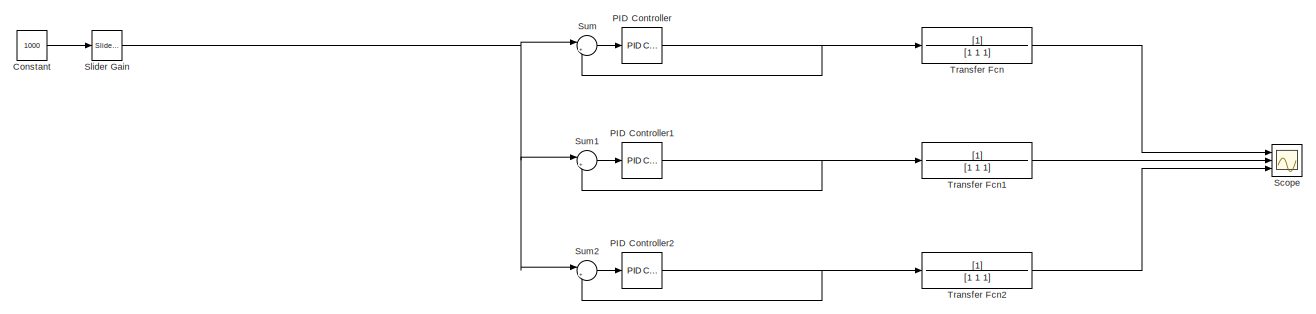
[diagram: root canvas - part 1/7, top left region]
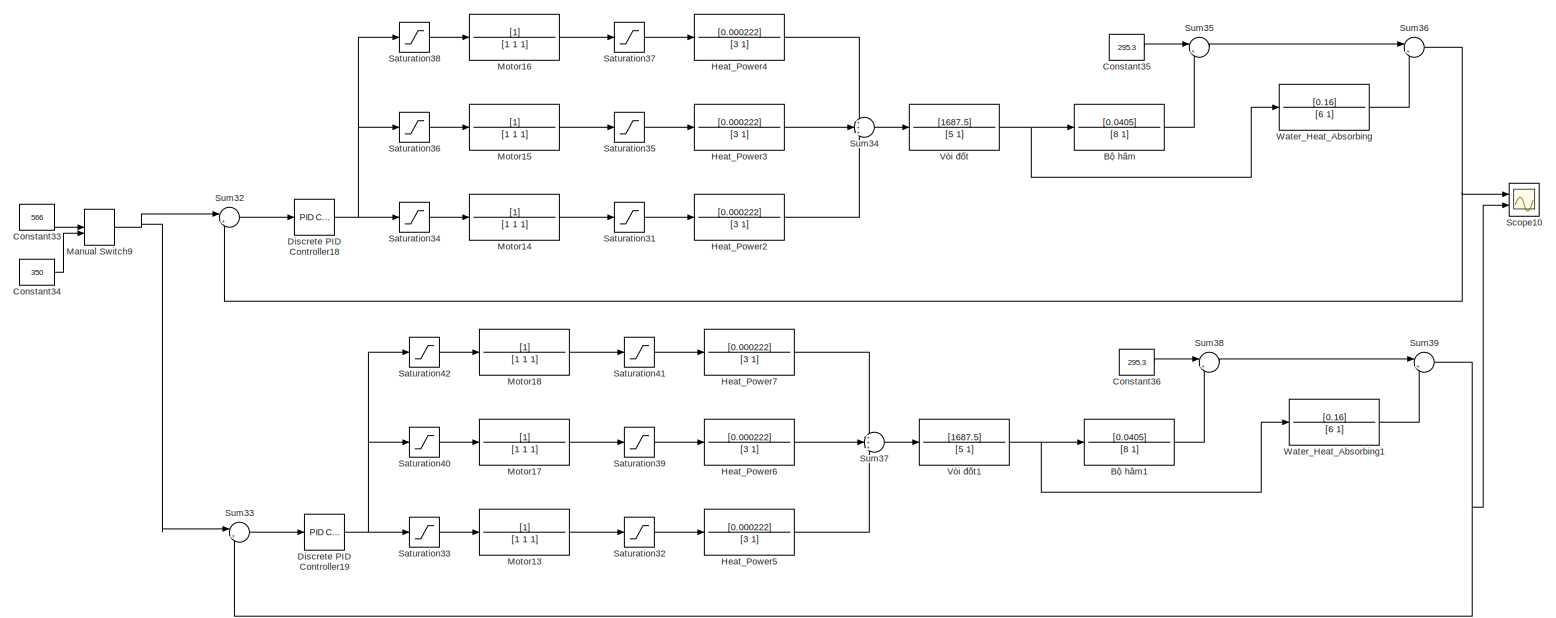
[diagram: root canvas - part 2/7, middle right region]
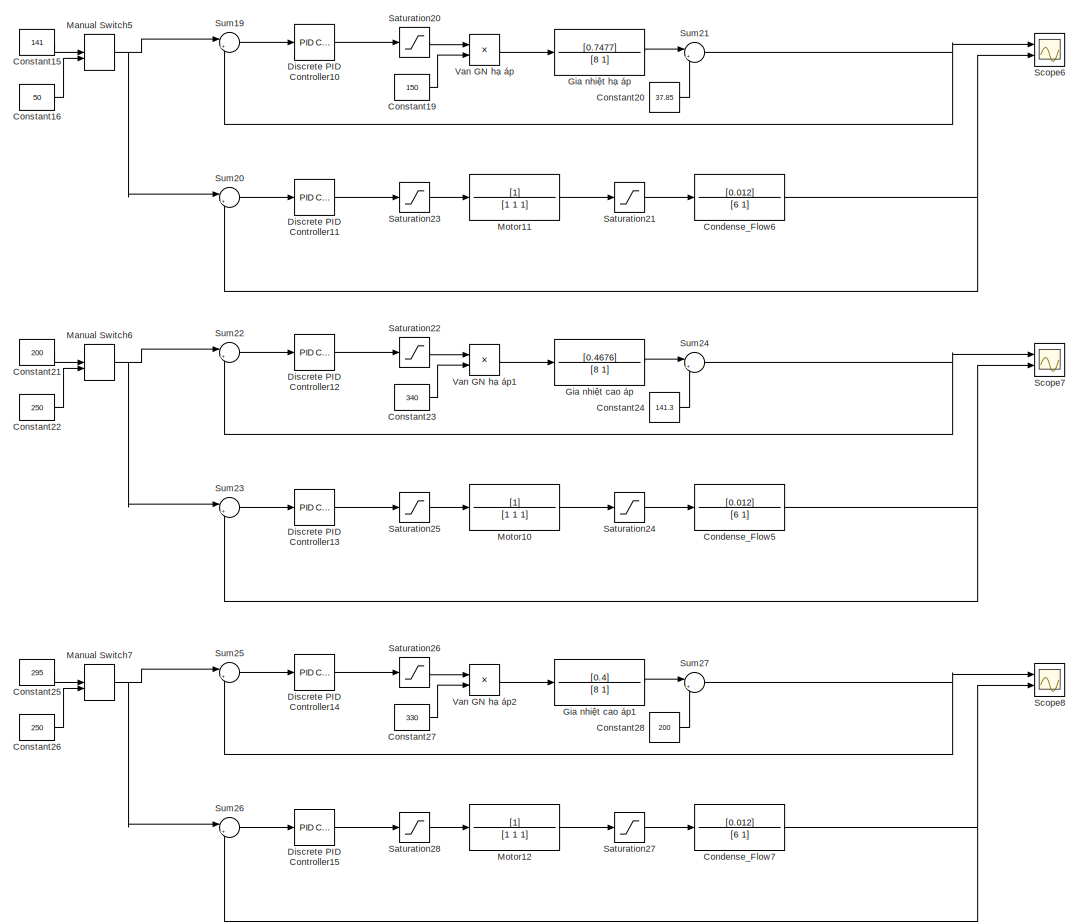
[diagram: root canvas - part 3/7, central region]
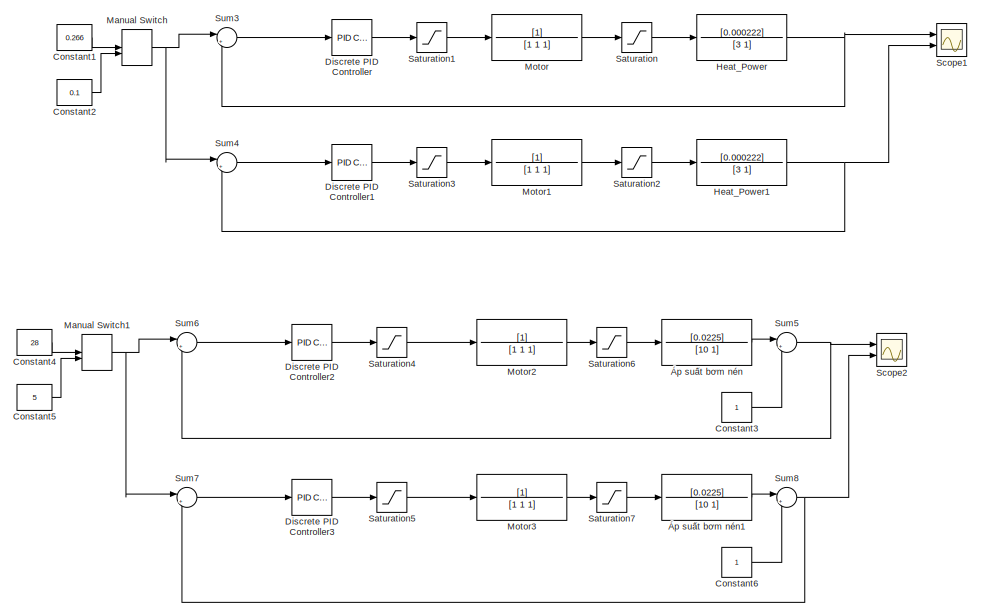
[diagram: root canvas - part 4/7, middle left region]
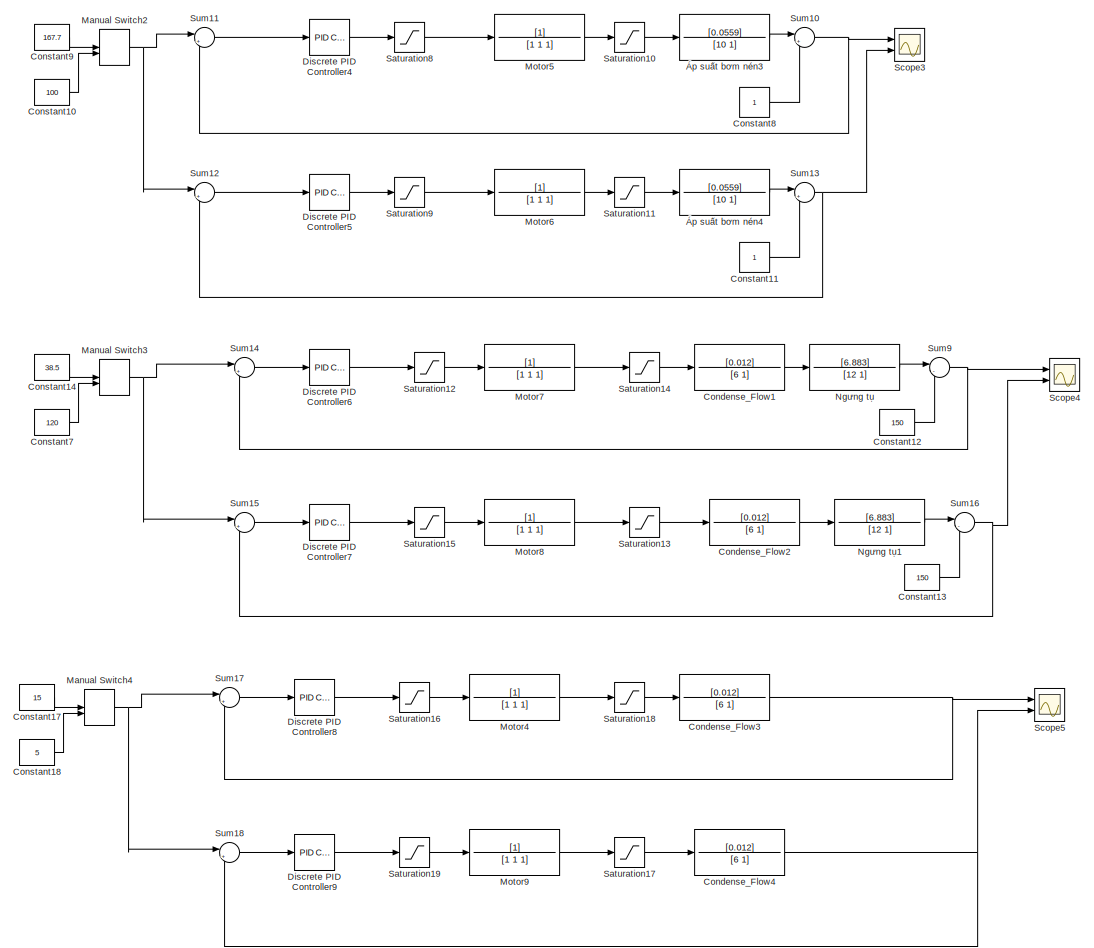
[diagram: root canvas - part 5/7, bottom left region]
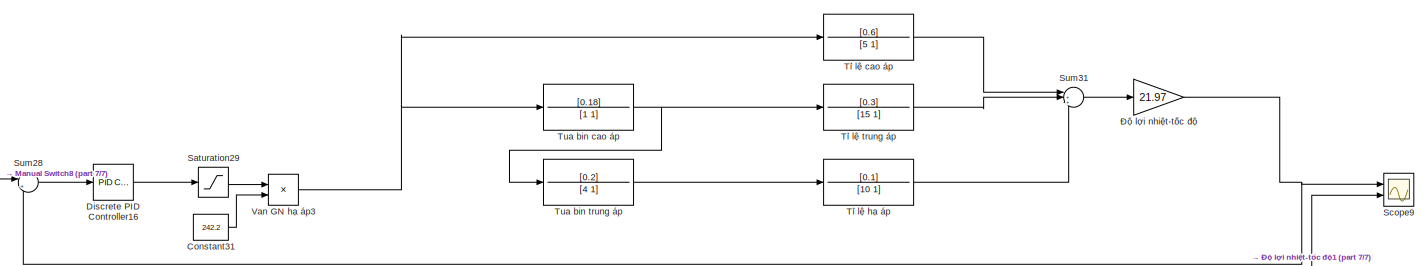
[diagram: root canvas - part 6/7, bottom center region]
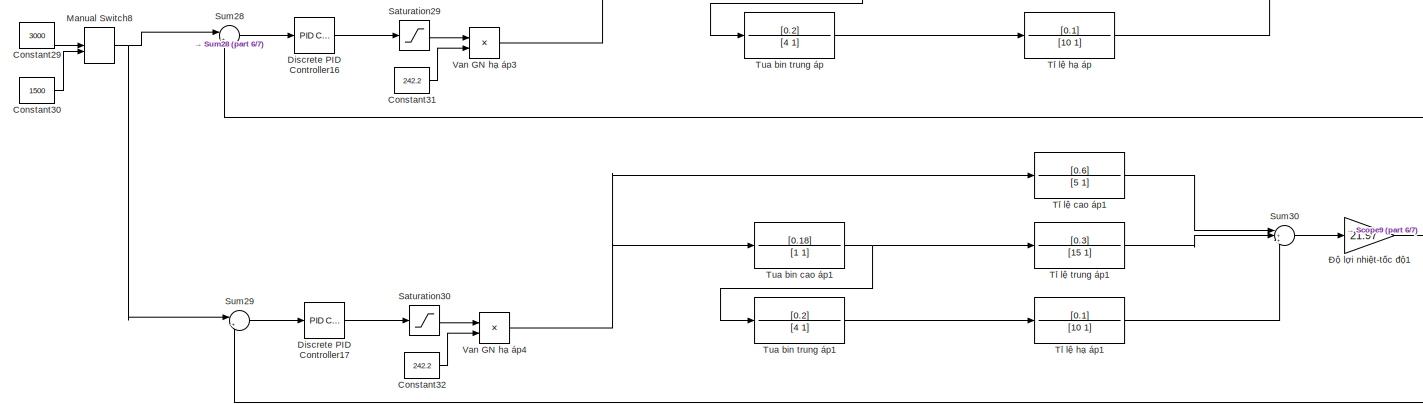
[diagram: root canvas - part 7/7, bottom center region]
MODEL slx_20ccd55a7e29
KIND model
CONFIG AbsTol = auto
CONFIG EnableMultiTasking = off
CONFIG FixedStep = 0.08
CONFIG MaxStep = auto
CONFIG MinStep = auto
CONFIG RelTol = 1e-3
CONFIG SampleTimeConstraint = Unconstrained
CONFIG Solver = ode4
CONFIG SolverName = ode4
CONFIG StartTime = 0.0
CONFIG StopTime = 100
BLOCK [TransferFcn] Bộ hâm
  Denominator = [8 1]
  Numerator = [0.0405]
BLOCK [TransferFcn] Bộ hâm1
  Denominator = [8 1]
  Numerator = [0.0405]
BLOCK [TransferFcn] Condense_Flow1
  Commented = on
  Denominator = [6 1]
  Numerator = [0.012]
BLOCK [TransferFcn] Condense_Flow2
  Commented = on
  Denominator = [6 1]
  Numerator = [0.012]
BLOCK [TransferFcn] Condense_Flow3
  Commented = on
  Denominator = [6 1]
  Numerator = [0.012]
BLOCK [TransferFcn] Condense_Flow4
  Commented = on
  Denominator = [6 1]
  Numerator = [0.012]
BLOCK [TransferFcn] Condense_Flow5
  Commented = on
  Denominator = [6 1]
  Numerator = [0.012]
BLOCK [TransferFcn] Condense_Flow6
  Commented = on
  Denominator = [6 1]
  Numerator = [0.012]
BLOCK [TransferFcn] Condense_Flow7
  Commented = on
  Denominator = [6 1]
  Numerator = [0.012]
BLOCK [Constant] Constant
  Commented = on
  Value = 1000
BLOCK [Constant] Constant1
  Commented = on
  Value = 0.266
BLOCK [Constant] Constant10
  Commented = on
  Value = 100
BLOCK [Constant] Constant11
  Commented = on
BLOCK [Constant] Constant12
  Commented = on
  Value = 150
BLOCK [Constant] Constant13
  Commented = on
  Value = 150
BLOCK [Constant] Constant14
  Commented = on
  Value = 38.5
BLOCK [Constant] Constant15
  Commented = on
  Value = 141
BLOCK [Constant] Constant16
  Commented = on
  Value = 50
BLOCK [Constant] Constant17
  Commented = on
  Value = 15
BLOCK [Constant] Constant18
  Commented = on
  Value = 5
BLOCK [Constant] Constant19
  Commented = on
  Value = 150
BLOCK [Constant] Constant2
  Commented = on
  Value = 0.1
BLOCK [Constant] Constant20
  Commented = on
  Value = 37.85
BLOCK [Constant] Constant21
  Commented = on
  Value = 200
BLOCK [Constant] Constant22
  Commented = on
  Value = 250
BLOCK [Constant] Constant23
  Commented = on
  Value = 340
BLOCK [Constant] Constant24
  Commented = on
  Value = 141.3
BLOCK [Constant] Constant25
  Commented = on
  Value = 295
BLOCK [Constant] Constant26
  Commented = on
  Value = 250
BLOCK [Constant] Constant27
  Commented = on
  Value = 330
BLOCK [Constant] Constant28
  Commented = on
  Value = 200
BLOCK [Constant] Constant29
  Commented = on
  Value = 3000
BLOCK [Constant] Constant3
  Commented = on
BLOCK [Constant] Constant30
  Commented = on
  Value = 1500
BLOCK [Constant] Constant31
  Commented = on
  Value = 242.2
BLOCK [Constant] Constant32
  Commented = on
  Value = 242.2
BLOCK [Constant] Constant33
  Value = 566
BLOCK [Constant] Constant34
  Value = 350
BLOCK [Constant] Constant35
  Value = 295.3
BLOCK [Constant] Constant36
  Value = 295.3
BLOCK [Constant] Constant4
  Commented = on
  Value = 28
BLOCK [Constant] Constant5
  Commented = on
  Value = 5
BLOCK [Constant] Constant6
  Commented = on
BLOCK [Constant] Constant7
  Commented = on
  Value = 120
BLOCK [Constant] Constant8
  Commented = on
BLOCK [Constant] Constant9
  Commented = on
  Value = 167.7
BLOCK [Reference] Discrete PID Controller  REF=simulink/Continuous/PID Controller
  Commented = on
  Ports = [1, 1]
  SourceBlock = simulink/Continuous/PID Controller
  SourceProductBaseCode = SL
  SourceProductName = Simulink
  SourceType = PID 1dof
BLOCK [Reference] Discrete PID Controller1  REF=simulink/Continuous/PID Controller
  Commented = on
  Ports = [1, 1]
  SourceBlock = simulink/Continuous/PID Controller
  SourceProductBaseCode = SL
  SourceProductName = Simulink
  SourceType = PID 1dof
BLOCK [Reference] Discrete PID Controller10  REF=simulink/Continuous/PID Controller
  Commented = on
  Ports = [1, 1]
  SourceBlock = simulink/Continuous/PID Controller
  SourceProductBaseCode = SL
  SourceProductName = Simulink
  SourceType = PID 1dof
BLOCK [Reference] Discrete PID Controller11  REF=simulink/Continuous/PID Controller
  Commented = on
  Ports = [1, 1]
  SourceBlock = simulink/Continuous/PID Controller
  SourceProductBaseCode = SL
  SourceProductName = Simulink
  SourceType = PID 1dof
BLOCK [Reference] Discrete PID Controller12  REF=simulink/Continuous/PID Controller
  Commented = on
  Ports = [1, 1]
  SourceBlock = simulink/Continuous/PID Controller
  SourceProductBaseCode = SL
  SourceProductName = Simulink
  SourceType = PID 1dof
BLOCK [Reference] Discrete PID Controller13  REF=simulink/Continuous/PID Controller
  Commented = on
  Ports = [1, 1]
  SourceBlock = simulink/Continuous/PID Controller
  SourceProductBaseCode = SL
  SourceProductName = Simulink
  SourceType = PID 1dof
BLOCK [Reference] Discrete PID Controller14  REF=simulink/Continuous/PID Controller
  Commented = on
  Ports = [1, 1]
  SourceBlock = simulink/Continuous/PID Controller
  SourceProductBaseCode = SL
  SourceProductName = Simulink
  SourceType = PID 1dof
BLOCK [Reference] Discrete PID Controller15  REF=simulink/Continuous/PID Controller
  Commented = on
  Ports = [1, 1]
  SourceBlock = simulink/Continuous/PID Controller
  SourceProductBaseCode = SL
  SourceProductName = Simulink
  SourceType = PID 1dof
BLOCK [Reference] Discrete PID Controller16  REF=simulink/Continuous/PID Controller
  Commented = on
  Ports = [1, 1]
  SourceBlock = simulink/Continuous/PID Controller
  SourceProductBaseCode = SL
  SourceProductName = Simulink
  SourceType = PID 1dof
BLOCK [Reference] Discrete PID Controller17  REF=simulink/Continuous/PID Controller
  Commented = on
  Ports = [1, 1]
  SourceBlock = simulink/Continuous/PID Controller
  SourceProductBaseCode = SL
  SourceProductName = Simulink
  SourceType = PID 1dof
BLOCK [Reference] Discrete PID Controller18  REF=simulink/Continuous/PID Controller
  Ports = [1, 1]
  SourceBlock = simulink/Continuous/PID Controller
  SourceProductBaseCode = SL
  SourceProductName = Simulink
  SourceType = PID 1dof
BLOCK [Reference] Discrete PID Controller19  REF=simulink/Continuous/PID Controller
  Ports = [1, 1]
  SourceBlock = simulink/Continuous/PID Controller
  SourceProductBaseCode = SL
  SourceProductName = Simulink
  SourceType = PID 1dof
BLOCK [Reference] Discrete PID Controller2  REF=simulink/Continuous/PID Controller
  Commented = on
  Ports = [1, 1]
  SourceBlock = simulink/Continuous/PID Controller
  SourceProductBaseCode = SL
  SourceProductName = Simulink
  SourceType = PID 1dof
BLOCK [Reference] Discrete PID Controller3  REF=simulink/Continuous/PID Controller
  Commented = on
  Ports = [1, 1]
  SourceBlock = simulink/Continuous/PID Controller
  SourceProductBaseCode = SL
  SourceProductName = Simulink
  SourceType = PID 1dof
BLOCK [Reference] Discrete PID Controller4  REF=simulink/Continuous/PID Controller
  Commented = on
  Ports = [1, 1]
  SourceBlock = simulink/Continuous/PID Controller
  SourceProductBaseCode = SL
  SourceProductName = Simulink
  SourceType = PID 1dof
BLOCK [Reference] Discrete PID Controller5  REF=simulink/Continuous/PID Controller
  Commented = on
  Ports = [1, 1]
  SourceBlock = simulink/Continuous/PID Controller
  SourceProductBaseCode = SL
  SourceProductName = Simulink
  SourceType = PID 1dof
BLOCK [Reference] Discrete PID Controller6  REF=simulink/Continuous/PID Controller
  Commented = on
  Ports = [1, 1]
  SourceBlock = simulink/Continuous/PID Controller
  SourceProductBaseCode = SL
  SourceProductName = Simulink
  SourceType = PID 1dof
BLOCK [Reference] Discrete PID Controller7  REF=simulink/Continuous/PID Controller
  Commented = on
  Ports = [1, 1]
  SourceBlock = simulink/Continuous/PID Controller
  SourceProductBaseCode = SL
  SourceProductName = Simulink
  SourceType = PID 1dof
BLOCK [Reference] Discrete PID Controller8  REF=simulink/Continuous/PID Controller
  Commented = on
  Ports = [1, 1]
  SourceBlock = simulink/Continuous/PID Controller
  SourceProductBaseCode = SL
  SourceProductName = Simulink
  SourceType = PID 1dof
BLOCK [Reference] Discrete PID Controller9  REF=simulink/Continuous/PID Controller
  Commented = on
  Ports = [1, 1]
  SourceBlock = simulink/Continuous/PID Controller
  SourceProductBaseCode = SL
  SourceProductName = Simulink
  SourceType = PID 1dof
BLOCK [TransferFcn] Gia nhiệt cao áp
  Commented = on
  Denominator = [8 1]
  Numerator = [0.4676]
BLOCK [TransferFcn] Gia nhiệt cao áp1
  Commented = on
  Denominator = [8 1]
  Numerator = [0.4]
BLOCK [TransferFcn] Gia nhiệt hạ áp
  Commented = on
  Denominator = [8 1]
  Numerator = [0.7477]
BLOCK [TransferFcn] Heat_Power
  Commented = on
  Denominator = [3 1]
  Numerator = [0.000222]
BLOCK [TransferFcn] Heat_Power1
  Commented = on
  Denominator = [3 1]
  Numerator = [0.000222]
BLOCK [TransferFcn] Heat_Power2
  Denominator = [3 1]
  Numerator = [0.000222]
BLOCK [TransferFcn] Heat_Power3
  Denominator = [3 1]
  Numerator = [0.000222]
BLOCK [TransferFcn] Heat_Power4
  Denominator = [3 1]
  Numerator = [0.000222]
BLOCK [TransferFcn] Heat_Power5
  Denominator = [3 1]
  Numerator = [0.000222]
BLOCK [TransferFcn] Heat_Power6
  Denominator = [3 1]
  Numerator = [0.000222]
BLOCK [TransferFcn] Heat_Power7
  Denominator = [3 1]
  Numerator = [0.000222]
BLOCK [ManualSwitch] Manual Switch
  Commented = on
  CurrentSetting = 0
BLOCK [ManualSwitch] Manual Switch1
  Commented = on
  CurrentSetting = 0
BLOCK [ManualSwitch] Manual Switch2
  Commented = on
  CurrentSetting = 0
BLOCK [ManualSwitch] Manual Switch3
  Commented = on
  CurrentSetting = 0
BLOCK [ManualSwitch] Manual Switch4
  Commented = on
BLOCK [ManualSwitch] Manual Switch5
  Commented = on
BLOCK [ManualSwitch] Manual Switch6
  Commented = on
BLOCK [ManualSwitch] Manual Switch7
  Commented = on
BLOCK [ManualSwitch] Manual Switch8
  Commented = on
BLOCK [ManualSwitch] Manual Switch9
BLOCK [TransferFcn] Motor
  Commented = on
  Denominator = [1 1 1]
BLOCK [TransferFcn] Motor1
  Commented = on
  Denominator = [1 1 1]
BLOCK [TransferFcn] Motor10
  Commented = on
  Denominator = [1 1 1]
BLOCK [TransferFcn] Motor11
  Commented = on
  Denominator = [1 1 1]
BLOCK [TransferFcn] Motor12
  Commented = on
  Denominator = [1 1 1]
BLOCK [TransferFcn] Motor13
  Denominator = [1 1 1]
BLOCK [TransferFcn] Motor14
  Denominator = [1 1 1]
BLOCK [TransferFcn] Motor15
  Denominator = [1 1 1]
BLOCK [TransferFcn] Motor16
  Denominator = [1 1 1]
BLOCK [TransferFcn] Motor17
  Denominator = [1 1 1]
BLOCK [TransferFcn] Motor18
  Denominator = [1 1 1]
BLOCK [TransferFcn] Motor2
  Commented = on
  Denominator = [1 1 1]
BLOCK [TransferFcn] Motor3
  Commented = on
  Denominator = [1 1 1]
BLOCK [TransferFcn] Motor4
  Commented = on
  Denominator = [1 1 1]
BLOCK [TransferFcn] Motor5
  Commented = on
  Denominator = [1 1 1]
BLOCK [TransferFcn] Motor6
  Commented = on
  Denominator = [1 1 1]
BLOCK [TransferFcn] Motor7
  Commented = on
  Denominator = [1 1 1]
BLOCK [TransferFcn] Motor8
  Commented = on
  Denominator = [1 1 1]
BLOCK [TransferFcn] Motor9
  Commented = on
  Denominator = [1 1 1]
BLOCK [TransferFcn] Ngưng tụ
  Commented = on
  Denominator = [12 1]
  Numerator = [6.883]
BLOCK [TransferFcn] Ngưng tụ1
  Commented = on
  Denominator = [12 1]
  Numerator = [6.883]
BLOCK [Reference] PID Controller  REF=simulink/Continuous/PID Controller
  Commented = on
  Ports = [1, 1]
  SourceBlock = simulink/Continuous/PID Controller
  SourceProductBaseCode = SL
  SourceProductName = Simulink
  SourceType = PID 1dof
BLOCK [Reference] PID Controller1  REF=simulink/Continuous/PID Controller
  Commented = on
  Ports = [1, 1]
  SourceBlock = simulink/Continuous/PID Controller
  SourceProductBaseCode = SL
  SourceProductName = Simulink
  SourceType = PID 1dof
BLOCK [Reference] PID Controller2  REF=simulink/Continuous/PID Controller
  Commented = on
  Ports = [1, 1]
  SourceBlock = simulink/Continuous/PID Controller
  SourceProductBaseCode = SL
  SourceProductName = Simulink
  SourceType = PID 1dof
BLOCK [Saturate] Saturation
  Commented = on
  InputPortMap = u0
  LowerLimit = -1485
  Ports = [1, 1]
  UpperLimit = 1485
BLOCK [Saturate] Saturation1
  Commented = on
  InputPortMap = u0
  LowerLimit = -1485
  Ports = [1, 1]
  UpperLimit = 1485
BLOCK [Saturate] Saturation10
  Commented = on
  InputPortMap = u0
  LowerLimit = -5645
  Ports = [1, 1]
  UpperLimit = 5645
BLOCK [Saturate] Saturation11
  Commented = on
  InputPortMap = u0
  LowerLimit = -5645
  Ports = [1, 1]
  UpperLimit = 5645
BLOCK [Saturate] Saturation12
  Commented = on
  InputPortMap = u0
  LowerLimit = -1500
  Ports = [1, 1]
  UpperLimit = 1500
BLOCK [Saturate] Saturation13
  Commented = on
  InputPortMap = u0
  LowerLimit = -1500
  Ports = [1, 1]
  UpperLimit = 1500
BLOCK [Saturate] Saturation14
  Commented = on
  InputPortMap = u0
  LowerLimit = -1500
  Ports = [1, 1]
  UpperLimit = 1500
BLOCK [Saturate] Saturation15
  Commented = on
  InputPortMap = u0
  LowerLimit = -1500
  Ports = [1, 1]
  UpperLimit = 1500
BLOCK [Saturate] Saturation16
  Commented = on
  InputPortMap = u0
  LowerLimit = -1500
  Ports = [1, 1]
  UpperLimit = 1500
BLOCK [Saturate] Saturation17
  Commented = on
  InputPortMap = u0
  LowerLimit = -1500
  Ports = [1, 1]
  UpperLimit = 1500
BLOCK [Saturate] Saturation18
  Commented = on
  InputPortMap = u0
  LowerLimit = -1500
  Ports = [1, 1]
  UpperLimit = 1500
BLOCK [Saturate] Saturation19
  Commented = on
  InputPortMap = u0
  LowerLimit = -1500
  Ports = [1, 1]
  UpperLimit = 1500
BLOCK [Saturate] Saturation2
  Commented = on
  InputPortMap = u0
  LowerLimit = -1485
  Ports = [1, 1]
  UpperLimit = 1485
BLOCK [Saturate] Saturation20
  Commented = on
  InputPortMap = u0
  LowerLimit = 0
  Ports = [1, 1]
  UpperLimit = 1
BLOCK [Saturate] Saturation21
  Commented = on
  InputPortMap = u0
  LowerLimit = -1500
  Ports = [1, 1]
  UpperLimit = 1500
BLOCK [Saturate] Saturation22
  Commented = on
  InputPortMap = u0
  LowerLimit = 0
  Ports = [1, 1]
  UpperLimit = 1
BLOCK [Saturate] Saturation23
  Commented = on
  InputPortMap = u0
  LowerLimit = -1500
  Ports = [1, 1]
  UpperLimit = 1500
BLOCK [Saturate] Saturation24
  Commented = on
  InputPortMap = u0
  LowerLimit = -1500
  Ports = [1, 1]
  UpperLimit = 1500
BLOCK [Saturate] Saturation25
  Commented = on
  InputPortMap = u0
  LowerLimit = -1500
  Ports = [1, 1]
  UpperLimit = 1500
BLOCK [Saturate] Saturation26
  Commented = on
  InputPortMap = u0
  LowerLimit = 0
  Ports = [1, 1]
  UpperLimit = 1
BLOCK [Saturate] Saturation27
  Commented = on
  InputPortMap = u0
  LowerLimit = -1500
  Ports = [1, 1]
  UpperLimit = 1500
BLOCK [Saturate] Saturation28
  Commented = on
  InputPortMap = u0
  LowerLimit = -1500
  Ports = [1, 1]
  UpperLimit = 1500
BLOCK [Saturate] Saturation29
  Commented = on
  InputPortMap = u0
  LowerLimit = 0
  Ports = [1, 1]
  UpperLimit = 1
BLOCK [Saturate] Saturation3
  Commented = on
  InputPortMap = u0
  LowerLimit = -1485
  Ports = [1, 1]
  UpperLimit = 1485
BLOCK [Saturate] Saturation30
  Commented = on
  InputPortMap = u0
  LowerLimit = 0
  Ports = [1, 1]
  UpperLimit = 1
BLOCK [Saturate] Saturation31
  InputPortMap = u0
  LowerLimit = -1500
  Ports = [1, 1]
  UpperLimit = 1500
BLOCK [Saturate] Saturation32
  InputPortMap = u0
  LowerLimit = -1500
  Ports = [1, 1]
  UpperLimit = 1500
BLOCK [Saturate] Saturation33
  InputPortMap = u0
  LowerLimit = -1500
  Ports = [1, 1]
  UpperLimit = 1500
BLOCK [Saturate] Saturation34
  InputPortMap = u0
  LowerLimit = -1500
  Ports = [1, 1]
  UpperLimit = 1500
BLOCK [Saturate] Saturation35
  InputPortMap = u0
  LowerLimit = -1500
  Ports = [1, 1]
  UpperLimit = 1500
BLOCK [Saturate] Saturation36
  InputPortMap = u0
  LowerLimit = -1500
  Ports = [1, 1]
  UpperLimit = 1500
BLOCK [Saturate] Saturation37
  InputPortMap = u0
  LowerLimit = -1500
  Ports = [1, 1]
  UpperLimit = 1500
BLOCK [Saturate] Saturation38
  InputPortMap = u0
  LowerLimit = -1500
  Ports = [1, 1]
  UpperLimit = 1500
BLOCK [Saturate] Saturation39
  InputPortMap = u0
  LowerLimit = -1500
  Ports = [1, 1]
  UpperLimit = 1500
BLOCK [Saturate] Saturation4
  Commented = on
  InputPortMap = u0
  LowerLimit = -1485
  Ports = [1, 1]
  UpperLimit = 1485
BLOCK [Saturate] Saturation40
  InputPortMap = u0
  LowerLimit = -1500
  Ports = [1, 1]
  UpperLimit = 1500
BLOCK [Saturate] Saturation41
  InputPortMap = u0
  LowerLimit = -1500
  Ports = [1, 1]
  UpperLimit = 1500
BLOCK [Saturate] Saturation42
  InputPortMap = u0
  LowerLimit = -1500
  Ports = [1, 1]
  UpperLimit = 1500
BLOCK [Saturate] Saturation5
  Commented = on
  InputPortMap = u0
  LowerLimit = -1485
  Ports = [1, 1]
  UpperLimit = 1485
BLOCK [Saturate] Saturation6
  Commented = on
  InputPortMap = u0
  LowerLimit = -1485
  Ports = [1, 1]
  UpperLimit = 1485
BLOCK [Saturate] Saturation7
  Commented = on
  InputPortMap = u0
  LowerLimit = -1485
  Ports = [1, 1]
  UpperLimit = 1485
BLOCK [Saturate] Saturation8
  Commented = on
  InputPortMap = u0
  LowerLimit = -5645
  Ports = [1, 1]
  UpperLimit = 5645
BLOCK [Saturate] Saturation9
  Commented = on
  InputPortMap = u0
  LowerLimit = -5645
  Ports = [1, 1]
  UpperLimit = 5645
BLOCK [Scope] Scope
  Commented = on
  Floating = off
  NumInputPorts = 3
  Ports = [3]
  ScopeSpecificationString = Simulink.scopes.TimeScopeBlockCfg('CurrentConfiguration', extmgr.ConfigurationSet(extmgr.Configuration('Core','General UI',true),extmgr.Configuration('Core','Source UI',true),extmgr.Configuration('Sources','WiredSimulink',true),extmgr.Configuration('Visuals','Time Domain',true,'SerializedDisplays',{struct('MinYLimReal','-130.55932','MaxYLimReal','1175.03389','YLabelReal','','MinYLimMag',' 0.00000'...<+1452ch>
BLOCK [Scope] Scope1
  Commented = on
  Floating = off
  NumInputPorts = 2
  Ports = [2]
  ScopeSpecificationString = Simulink.scopes.TimeScopeBlockCfg('CurrentConfiguration', extmgr.ConfigurationSet(extmgr.Configuration('Core','General UI',true),extmgr.Configuration('Core','Source UI',true),extmgr.Configuration('Sources','WiredSimulink',true,'DataLoggingVariableName','ScopeData1'),extmgr.Configuration('Visuals','Time Domain',true,'SerializedDisplays',{struct('MinYLimReal','-0.03472','MaxYLimReal','0.3125','YLabe...<+1449ch>
BLOCK [Scope] Scope10
  Floating = off
  NumInputPorts = 2
  Ports = [2]
  ScopeSpecificationString = Simulink.scopes.TimeScopeBlockCfg('CurrentConfiguration', extmgr.ConfigurationSet(extmgr.Configuration('Core','General UI',true),extmgr.Configuration('Core','Source UI',true),extmgr.Configuration('Sources','WiredSimulink',true,'DataLoggingVariableName','ScopeData2'),extmgr.Configuration('Visuals','Time Domain',true,'SerializedDisplays',{struct('MinYLimReal','533.09373','MaxYLimReal','572.52884','Y...<+1456ch>
BLOCK [Scope] Scope2
  Commented = on
  Floating = off
  NumInputPorts = 2
  Ports = [2]
  ScopeSpecificationString = Simulink.scopes.TimeScopeBlockCfg('CurrentConfiguration', extmgr.ConfigurationSet(extmgr.Configuration('Core','General UI',true),extmgr.Configuration('Core','Source UI',true),extmgr.Configuration('Sources','WiredSimulink',true,'DataLoggingVariableName','ScopeData1'),extmgr.Configuration('Visuals','Time Domain',true,'SerializedDisplays',{struct('MinYLimReal','-2.59534','MaxYLimReal','33.35807','YLa...<+1445ch>
BLOCK [Scope] Scope3
  Commented = on
  Floating = off
  NumInputPorts = 2
  Ports = [2]
  ScopeSpecificationString = Simulink.scopes.TimeScopeBlockCfg('CurrentConfiguration', extmgr.ConfigurationSet(extmgr.Configuration('Core','General UI',true),extmgr.Configuration('Core','Source UI',true),extmgr.Configuration('Sources','WiredSimulink',true,'DataLoggingVariableName','ScopeData2'),extmgr.Configuration('Visuals','Time Domain',true,'SerializedDisplays',{struct('MinYLimReal','17.97145','MaxYLimReal','18.01062','YLa...<+1448ch>
BLOCK [Scope] Scope4
  Commented = on
  Floating = off
  NumInputPorts = 2
  Ports = [2]
  ScopeSpecificationString = Simulink.scopes.TimeScopeBlockCfg('CurrentConfiguration', extmgr.ConfigurationSet(extmgr.Configuration('Core','General UI',true),extmgr.Configuration('Core','Source UI',true),extmgr.Configuration('Sources','WiredSimulink',true,'DataLoggingVariableName','ScopeData1'),extmgr.Configuration('Visuals','Time Domain',true,'SerializedDisplays',{struct('MinYLimReal','113.89354','MaxYLimReal','154.01183','Y...<+1456ch>
BLOCK [Scope] Scope5
  Commented = on
  Floating = off
  NumInputPorts = 2
  Ports = [2]
  ScopeSpecificationString = Simulink.scopes.TimeScopeBlockCfg('CurrentConfiguration', extmgr.ConfigurationSet(extmgr.Configuration('Core','General UI',true),extmgr.Configuration('Core','Source UI',true),extmgr.Configuration('Sources','WiredSimulink',true,'DataLoggingVariableName','ScopeData1'),extmgr.Configuration('Visuals','Time Domain',true,'SerializedDisplays',{struct('MinYLimReal','-1.90523','MaxYLimReal','17.14711','YLa...<+1460ch>
BLOCK [Scope] Scope6
  Commented = on
  Floating = off
  NumInputPorts = 2
  Ports = [2]
  ScopeSpecificationString = Simulink.scopes.TimeScopeBlockCfg('CurrentConfiguration', extmgr.ConfigurationSet(extmgr.Configuration('Core','General UI',true),extmgr.Configuration('Core','Source UI',true),extmgr.Configuration('Sources','WiredSimulink',true,'DataLoggingVariableName','ScopeData2'),extmgr.Configuration('Visuals','Time Domain',true,'SerializedDisplays',{struct('MinYLimReal','-18.73859','MaxYLimReal','168.64727','Y...<+1461ch>
BLOCK [Scope] Scope7
  Commented = on
  Floating = off
  NumInputPorts = 2
  Ports = [2]
  ScopeSpecificationString = Simulink.scopes.TimeScopeBlockCfg('CurrentConfiguration', extmgr.ConfigurationSet(extmgr.Configuration('Core','General UI',true),extmgr.Configuration('Core','Source UI',true),extmgr.Configuration('Sources','WiredSimulink',true,'DataLoggingVariableName','ScopeData3'),extmgr.Configuration('Visuals','Time Domain',true,'SerializedDisplays',{struct('MinYLimReal','-25.55648','MaxYLimReal','230.00832','Y...<+1462ch>
BLOCK [Scope] Scope8
  Commented = on
  Floating = off
  NumInputPorts = 2
  Ports = [2]
  ScopeSpecificationString = Simulink.scopes.TimeScopeBlockCfg('CurrentConfiguration', extmgr.ConfigurationSet(extmgr.Configuration('Core','General UI',true),extmgr.Configuration('Core','Source UI',true),extmgr.Configuration('Sources','WiredSimulink',true,'DataLoggingVariableName','ScopeData4'),extmgr.Configuration('Visuals','Time Domain',true,'SerializedDisplays',{struct('MinYLimReal','-38.15829','MaxYLimReal','343.42459','Y...<+1460ch>
BLOCK [Scope] Scope9
  Commented = on
  Floating = off
  NumInputPorts = 2
  Ports = [2]
  ScopeSpecificationString = Simulink.scopes.TimeScopeBlockCfg('CurrentConfiguration', extmgr.ConfigurationSet(extmgr.Configuration('Core','General UI',true),extmgr.Configuration('Core','Source UI',true),extmgr.Configuration('Sources','WiredSimulink',true,'DataLoggingVariableName','ScopeData1'),extmgr.Configuration('Visuals','Time Domain',true,'SerializedDisplays',{struct('MinYLimReal','-396.30469','MaxYLimReal','3566.74225',...<+1488ch>
BLOCK [Reference] Slider Gain  REF=simulink/Math
Operations/Slider
Gain
  Commented = on
  Ports = [1, 1]
  SourceBlock = simulink/Math\nOperations/Slider\nGain
  SourceProductBaseCode = SL
  SourceProductName = Simulink
  SourceType = Slider Gain
BLOCK [Sum] Sum
  Commented = on
  IconShape = round
  InputSameDT = off
  Inputs = |+-
  OutDataTypeStr = Inherit: Inherit via internal rule
  Ports = [2, 1]
  SaturateOnIntegerOverflow = off
BLOCK [Sum] Sum1
  Commented = on
  IconShape = round
  InputSameDT = off
  Inputs = |+-
  OutDataTypeStr = Inherit: Inherit via internal rule
  Ports = [2, 1]
  SaturateOnIntegerOverflow = off
BLOCK [Sum] Sum10
  Commented = on
  IconShape = round
  InputSameDT = off
  Inputs = |++
  OutDataTypeStr = Inherit: Inherit via internal rule
  Ports = [2, 1]
  SaturateOnIntegerOverflow = off
BLOCK [Sum] Sum11
  Commented = on
  IconShape = round
  InputSameDT = off
  Inputs = |+-
  OutDataTypeStr = Inherit: Inherit via internal rule
  Ports = [2, 1]
  SaturateOnIntegerOverflow = off
BLOCK [Sum] Sum12
  Commented = on
  IconShape = round
  InputSameDT = off
  Inputs = |+-
  OutDataTypeStr = Inherit: Inherit via internal rule
  Ports = [2, 1]
  SaturateOnIntegerOverflow = off
BLOCK [Sum] Sum13
  Commented = on
  IconShape = round
  InputSameDT = off
  Inputs = |++
  OutDataTypeStr = Inherit: Inherit via internal rule
  Ports = [2, 1]
  SaturateOnIntegerOverflow = off
BLOCK [Sum] Sum14
  Commented = on
  IconShape = round
  InputSameDT = off
  Inputs = |+-
  OutDataTypeStr = Inherit: Inherit via internal rule
  Ports = [2, 1]
  SaturateOnIntegerOverflow = off
BLOCK [Sum] Sum15
  Commented = on
  IconShape = round
  InputSameDT = off
  Inputs = |+-
  OutDataTypeStr = Inherit: Inherit via internal rule
  Ports = [2, 1]
  SaturateOnIntegerOverflow = off
BLOCK [Sum] Sum16
  Commented = on
  IconShape = round
  InputSameDT = off
  Inputs = |-+
  OutDataTypeStr = Inherit: Inherit via internal rule
  Ports = [2, 1]
  SaturateOnIntegerOverflow = off
BLOCK [Sum] Sum17
  Commented = on
  IconShape = round
  InputSameDT = off
  Inputs = |+-
  OutDataTypeStr = Inherit: Inherit via internal rule
  Ports = [2, 1]
  SaturateOnIntegerOverflow = off
BLOCK [Sum] Sum18
  Commented = on
  IconShape = round
  InputSameDT = off
  Inputs = |+-
  OutDataTypeStr = Inherit: Inherit via internal rule
  Ports = [2, 1]
  SaturateOnIntegerOverflow = off
BLOCK [Sum] Sum19
  Commented = on
  IconShape = round
  InputSameDT = off
  Inputs = |+-
  OutDataTypeStr = Inherit: Inherit via internal rule
  Ports = [2, 1]
  SaturateOnIntegerOverflow = off
BLOCK [Sum] Sum2
  Commented = on
  IconShape = round
  InputSameDT = off
  Inputs = |+-
  OutDataTypeStr = Inherit: Inherit via internal rule
  Ports = [2, 1]
  SaturateOnIntegerOverflow = off
BLOCK [Sum] Sum20
  Commented = on
  IconShape = round
  InputSameDT = off
  Inputs = |+-
  OutDataTypeStr = Inherit: Inherit via internal rule
  Ports = [2, 1]
  SaturateOnIntegerOverflow = off
BLOCK [Sum] Sum21
  Commented = on
  IconShape = round
  InputSameDT = off
  Inputs = |++
  OutDataTypeStr = Inherit: Inherit via internal rule
  Ports = [2, 1]
  SaturateOnIntegerOverflow = off
BLOCK [Sum] Sum22
  Commented = on
  IconShape = round
  InputSameDT = off
  Inputs = |+-
  OutDataTypeStr = Inherit: Inherit via internal rule
  Ports = [2, 1]
  SaturateOnIntegerOverflow = off
BLOCK [Sum] Sum23
  Commented = on
  IconShape = round
  InputSameDT = off
  Inputs = |+-
  OutDataTypeStr = Inherit: Inherit via internal rule
  Ports = [2, 1]
  SaturateOnIntegerOverflow = off
BLOCK [Sum] Sum24
  Commented = on
  IconShape = round
  InputSameDT = off
  Inputs = |++
  OutDataTypeStr = Inherit: Inherit via internal rule
  Ports = [2, 1]
  SaturateOnIntegerOverflow = off
BLOCK [Sum] Sum25
  Commented = on
  IconShape = round
  InputSameDT = off
  Inputs = |+-
  OutDataTypeStr = Inherit: Inherit via internal rule
  Ports = [2, 1]
  SaturateOnIntegerOverflow = off
BLOCK [Sum] Sum26
  Commented = on
  IconShape = round
  InputSameDT = off
  Inputs = |+-
  OutDataTypeStr = Inherit: Inherit via internal rule
  Ports = [2, 1]
  SaturateOnIntegerOverflow = off
BLOCK [Sum] Sum27
  Commented = on
  IconShape = round
  InputSameDT = off
  Inputs = |++
  OutDataTypeStr = Inherit: Inherit via internal rule
  Ports = [2, 1]
  SaturateOnIntegerOverflow = off
BLOCK [Sum] Sum28
  Commented = on
  IconShape = round
  InputSameDT = off
  Inputs = |+-
  OutDataTypeStr = Inherit: Inherit via internal rule
  Ports = [2, 1]
  SaturateOnIntegerOverflow = off
BLOCK [Sum] Sum29
  Commented = on
  IconShape = round
  InputSameDT = off
  Inputs = |+-
  OutDataTypeStr = Inherit: Inherit via internal rule
  Ports = [2, 1]
  SaturateOnIntegerOverflow = off
BLOCK [Sum] Sum3
  Commented = on
  IconShape = round
  InputSameDT = off
  Inputs = |+-
  OutDataTypeStr = Inherit: Inherit via internal rule
  Ports = [2, 1]
  SaturateOnIntegerOverflow = off
BLOCK [Sum] Sum30
  Commented = on
  IconShape = round
  InputSameDT = off
  Inputs = |+++
  OutDataTypeStr = Inherit: Inherit via internal rule
  Ports = [3, 1]
  SaturateOnIntegerOverflow = off
BLOCK [Sum] Sum31
  Commented = on
  IconShape = round
  InputSameDT = off
  Inputs = |+++
  OutDataTypeStr = Inherit: Inherit via internal rule
  Ports = [3, 1]
  SaturateOnIntegerOverflow = off
BLOCK [Sum] Sum32
  IconShape = round
  InputSameDT = off
  Inputs = |+-
  OutDataTypeStr = Inherit: Inherit via internal rule
  Ports = [2, 1]
  SaturateOnIntegerOverflow = off
BLOCK [Sum] Sum33
  IconShape = round
  InputSameDT = off
  Inputs = |+-
  OutDataTypeStr = Inherit: Inherit via internal rule
  Ports = [2, 1]
  SaturateOnIntegerOverflow = off
BLOCK [Sum] Sum34
  IconShape = round
  InputSameDT = off
  Inputs = +++
  OutDataTypeStr = Inherit: Inherit via internal rule
  Ports = [3, 1]
  SaturateOnIntegerOverflow = off
BLOCK [Sum] Sum35
  IconShape = round
  InputSameDT = off
  Inputs = |++
  OutDataTypeStr = Inherit: Inherit via internal rule
  Ports = [2, 1]
  SaturateOnIntegerOverflow = off
BLOCK [Sum] Sum36
  IconShape = round
  InputSameDT = off
  Inputs = |++
  OutDataTypeStr = Inherit: Inherit via internal rule
  Ports = [2, 1]
  SaturateOnIntegerOverflow = off
BLOCK [Sum] Sum37
  IconShape = round
  InputSameDT = off
  Inputs = +++
  OutDataTypeStr = Inherit: Inherit via internal rule
  Ports = [3, 1]
  SaturateOnIntegerOverflow = off
BLOCK [Sum] Sum38
  IconShape = round
  InputSameDT = off
  Inputs = |++
  OutDataTypeStr = Inherit: Inherit via internal rule
  Ports = [2, 1]
  SaturateOnIntegerOverflow = off
BLOCK [Sum] Sum39
  IconShape = round
  InputSameDT = off
  Inputs = |++
  OutDataTypeStr = Inherit: Inherit via internal rule
  Ports = [2, 1]
  SaturateOnIntegerOverflow = off
BLOCK [Sum] Sum4
  Commented = on
  IconShape = round
  InputSameDT = off
  Inputs = |+-
  OutDataTypeStr = Inherit: Inherit via internal rule
  Ports = [2, 1]
  SaturateOnIntegerOverflow = off
BLOCK [Sum] Sum5
  Commented = on
  IconShape = round
  InputSameDT = off
  Inputs = |++
  OutDataTypeStr = Inherit: Inherit via internal rule
  Ports = [2, 1]
  SaturateOnIntegerOverflow = off
BLOCK [Sum] Sum6
  Commented = on
  IconShape = round
  InputSameDT = off
  Inputs = |+-
  OutDataTypeStr = Inherit: Inherit via internal rule
  Ports = [2, 1]
  SaturateOnIntegerOverflow = off
BLOCK [Sum] Sum7
  Commented = on
  IconShape = round
  InputSameDT = off
  Inputs = |+-
  OutDataTypeStr = Inherit: Inherit via internal rule
  Ports = [2, 1]
  SaturateOnIntegerOverflow = off
BLOCK [Sum] Sum8
  Commented = on
  IconShape = round
  InputSameDT = off
  Inputs = |++
  OutDataTypeStr = Inherit: Inherit via internal rule
  Ports = [2, 1]
  SaturateOnIntegerOverflow = off
BLOCK [Sum] Sum9
  Commented = on
  IconShape = round
  InputSameDT = off
  Inputs = |-+
  OutDataTypeStr = Inherit: Inherit via internal rule
  Ports = [2, 1]
  SaturateOnIntegerOverflow = off
BLOCK [TransferFcn] Transfer Fcn
  Commented = on
  Denominator = [1 1 1]
BLOCK [TransferFcn] Transfer Fcn1
  Commented = on
  Denominator = [1 1 1]
BLOCK [TransferFcn] Transfer Fcn2
  Commented = on
  Denominator = [1 1 1]
BLOCK [TransferFcn] Tua bin cao áp
  Commented = on
  Denominator = [1 1]
  Numerator = [0.18]
BLOCK [TransferFcn] Tua bin cao áp1
  Commented = on
  Denominator = [1 1]
  Numerator = [0.18]
BLOCK [TransferFcn] Tua bin trung áp
  Commented = on
  Denominator = [4 1]
  Numerator = [0.2]
BLOCK [TransferFcn] Tua bin trung áp1
  Commented = on
  Denominator = [4 1]
  Numerator = [0.2]
BLOCK [TransferFcn] Tỉ lệ cao áp
  Commented = on
  Denominator = [5 1]
  Numerator = [0.6]
BLOCK [TransferFcn] Tỉ lệ cao áp1
  Commented = on
  Denominator = [5 1]
  Numerator = [0.6]
BLOCK [TransferFcn] Tỉ lệ hạ áp
  Commented = on
  Denominator = [10 1]
  Numerator = [0.1]
BLOCK [TransferFcn] Tỉ lệ hạ áp1
  Commented = on
  Denominator = [10 1]
  Numerator = [0.1]
BLOCK [TransferFcn] Tỉ lệ trung áp
  Commented = on
  Denominator = [15 1]
  Numerator = [0.3]
BLOCK [TransferFcn] Tỉ lệ trung áp1
  Commented = on
  Denominator = [15 1]
  Numerator = [0.3]
BLOCK [Product] Van GN hạ áp
  Commented = on
  InputSameDT = off
  OutDataTypeStr = Inherit: Inherit via internal rule
  Ports = [2, 1]
  RndMeth = Floor
  SaturateOnIntegerOverflow = off
BLOCK [Product] Van GN hạ áp1
  Commented = on
  InputSameDT = off
  OutDataTypeStr = Inherit: Inherit via internal rule
  Ports = [2, 1]
  RndMeth = Floor
  SaturateOnIntegerOverflow = off
BLOCK [Product] Van GN hạ áp2
  Commented = on
  InputSameDT = off
  OutDataTypeStr = Inherit: Inherit via internal rule
  Ports = [2, 1]
  RndMeth = Floor
  SaturateOnIntegerOverflow = off
BLOCK [Product] Van GN hạ áp3
  Commented = on
  InputSameDT = off
  OutDataTypeStr = Inherit: Inherit via internal rule
  Ports = [2, 1]
  RndMeth = Floor
  SaturateOnIntegerOverflow = off
BLOCK [Product] Van GN hạ áp4
  Commented = on
  InputSameDT = off
  OutDataTypeStr = Inherit: Inherit via internal rule
  Ports = [2, 1]
  RndMeth = Floor
  SaturateOnIntegerOverflow = off
BLOCK [TransferFcn] Vòi đốt
  Denominator = [5 1]
  Numerator = [1687.5]
BLOCK [TransferFcn] Vòi đốt1
  Denominator = [5 1]
  Numerator = [1687.5]
BLOCK [TransferFcn] Water_Heat_Absorbing
  Denominator = [6 1]
  Numerator = [0.16]
BLOCK [TransferFcn] Water_Heat_Absorbing1
  Denominator = [6 1]
  Numerator = [0.16]
BLOCK [TransferFcn] Áp suất bơm nén
  Commented = on
  Denominator = [10 1]
  Numerator = [0.0225]
BLOCK [TransferFcn] Áp suất bơm nén1
  Commented = on
  Denominator = [10 1]
  Numerator = [0.0225]
BLOCK [TransferFcn] Áp suất bơm nén3
  Commented = on
  Denominator = [10 1]
  Numerator = [0.0559]
BLOCK [TransferFcn] Áp suất bơm nén4
  Commented = on
  Denominator = [10 1]
  Numerator = [0.0559]
BLOCK [Gain] Độ lợi nhiệt-tốc độ
  Commented = on
  Gain = 21.97
  OutDataTypeStr = Inherit: Inherit via internal rule
  ParamDataTypeStr = Inherit: Inherit via internal rule
  SaturateOnIntegerOverflow = off
BLOCK [Gain] Độ lợi nhiệt-tốc độ1
  Commented = on
  Gain = 21.97
  OutDataTypeStr = Inherit: Inherit via internal rule
  ParamDataTypeStr = Inherit: Inherit via internal rule
  SaturateOnIntegerOverflow = off
LINE Bộ hâm1:1 -> Sum38:2
LINE Bộ hâm:1 -> Sum35:2
LINE Condense_Flow1:1 -> Ngưng tụ:1
LINE Condense_Flow2:1 -> Ngưng tụ1:1
NET Condense_Flow3:1 -> Scope5:1, Sum17:2
NET Condense_Flow4:1 -> Scope5:2, Sum18:2
NET Condense_Flow5:1 -> Scope7:2, Sum23:2
NET Condense_Flow6:1 -> Scope6:2, Sum20:2
NET Condense_Flow7:1 -> Scope8:2, Sum26:2
LINE Constant10:1 -> Manual Switch2:2
LINE Constant11:1 -> Sum13:2
LINE Constant12:1 -> Sum9:2
LINE Constant13:1 -> Sum16:2
LINE Constant14:1 -> Manual Switch3:1
LINE Constant15:1 -> Manual Switch5:1
LINE Constant16:1 -> Manual Switch5:2
LINE Constant17:1 -> Manual Switch4:1
LINE Constant18:1 -> Manual Switch4:2
LINE Constant19:1 -> Van GN hạ áp:2
LINE Constant1:1 -> Manual Switch:1
LINE Constant20:1 -> Sum21:2
LINE Constant21:1 -> Manual Switch6:1
LINE Constant22:1 -> Manual Switch6:2
LINE Constant23:1 -> Van GN hạ áp1:2
LINE Constant24:1 -> Sum24:2
LINE Constant25:1 -> Manual Switch7:1
LINE Constant26:1 -> Manual Switch7:2
LINE Constant27:1 -> Van GN hạ áp2:2
LINE Constant28:1 -> Sum27:2
LINE Constant29:1 -> Manual Switch8:1
LINE Constant2:1 -> Manual Switch:2
LINE Constant30:1 -> Manual Switch8:2
LINE Constant31:1 -> Van GN hạ áp3:2
LINE Constant32:1 -> Van GN hạ áp4:2
LINE Constant33:1 -> Manual Switch9:1
LINE Constant34:1 -> Manual Switch9:2
LINE Constant35:1 -> Sum35:1
LINE Constant36:1 -> Sum38:1
LINE Constant3:1 -> Sum5:2
LINE Constant4:1 -> Manual Switch1:1
LINE Constant5:1 -> Manual Switch1:2
LINE Constant6:1 -> Sum8:2
LINE Constant7:1 -> Manual Switch3:2
LINE Constant8:1 -> Sum10:2
LINE Constant9:1 -> Manual Switch2:1
LINE Constant:1 -> Slider Gain:1
LINE Discrete PID Controller10:1 -> Saturation20:1
LINE Discrete PID Controller11:1 -> Saturation23:1
LINE Discrete PID Controller12:1 -> Saturation22:1
LINE Discrete PID Controller13:1 -> Saturation25:1
LINE Discrete PID Controller14:1 -> Saturation26:1
LINE Discrete PID Controller15:1 -> Saturation28:1
LINE Discrete PID Controller16:1 -> Saturation29:1
LINE Discrete PID Controller17:1 -> Saturation30:1
NET Discrete PID Controller18:1 -> Saturation34:1, Saturation36:1, Saturation38:1
NET Discrete PID Controller19:1 -> Saturation33:1, Saturation40:1, Saturation42:1
LINE Discrete PID Controller1:1 -> Saturation3:1
LINE Discrete PID Controller2:1 -> Saturation4:1
LINE Discrete PID Controller3:1 -> Saturation5:1
LINE Discrete PID Controller4:1 -> Saturation8:1
LINE Discrete PID Controller5:1 -> Saturation9:1
LINE Discrete PID Controller6:1 -> Saturation12:1
LINE Discrete PID Controller7:1 -> Saturation15:1
LINE Discrete PID Controller8:1 -> Saturation16:1
LINE Discrete PID Controller9:1 -> Saturation19:1
LINE Discrete PID Controller:1 -> Saturation1:1
LINE Gia nhiệt cao áp1:1 -> Sum27:1
LINE Gia nhiệt cao áp:1 -> Sum24:1
LINE Gia nhiệt hạ áp:1 -> Sum21:1
NET Heat_Power1:1 -> Scope1:2, Sum4:2
LINE Heat_Power2:1 -> Sum34:3
LINE Heat_Power3:1 -> Sum34:2
LINE Heat_Power4:1 -> Sum34:1
LINE Heat_Power5:1 -> Sum37:3
LINE Heat_Power6:1 -> Sum37:2
LINE Heat_Power7:1 -> Sum37:1
NET Heat_Power:1 -> Scope1:1, Sum3:2
NET Manual Switch1:1 -> Sum6:1, Sum7:1
NET Manual Switch2:1 -> Sum11:1, Sum12:1
NET Manual Switch3:1 -> Sum14:1, Sum15:1
NET Manual Switch4:1 -> Sum17:1, Sum18:1
NET Manual Switch5:1 -> Sum19:1, Sum20:1
NET Manual Switch6:1 -> Sum22:1, Sum23:1
NET Manual Switch7:1 -> Sum25:1, Sum26:1
NET Manual Switch8:1 -> Sum28:1, Sum29:1
NET Manual Switch9:1 -> Sum32:1, Sum33:1
NET Manual Switch:1 -> Sum3:1, Sum4:1
LINE Motor10:1 -> Saturation24:1
LINE Motor11:1 -> Saturation21:1
LINE Motor12:1 -> Saturation27:1
LINE Motor13:1 -> Saturation32:1
LINE Motor14:1 -> Saturation31:1
LINE Motor15:1 -> Saturation35:1
LINE Motor16:1 -> Saturation37:1
LINE Motor17:1 -> Saturation39:1
LINE Motor18:1 -> Saturation41:1
LINE Motor1:1 -> Saturation2:1
LINE Motor2:1 -> Saturation6:1
LINE Motor3:1 -> Saturation7:1
LINE Motor4:1 -> Saturation18:1
LINE Motor5:1 -> Saturation10:1
LINE Motor6:1 -> Saturation11:1
LINE Motor7:1 -> Saturation14:1
LINE Motor8:1 -> Saturation13:1
LINE Motor9:1 -> Saturation17:1
LINE Motor:1 -> Saturation:1
LINE Ngưng tụ1:1 -> Sum16:1
LINE Ngưng tụ:1 -> Sum9:1
LINE PID Controller1:1 -> Transfer Fcn1:1
LINE PID Controller2:1 -> Transfer Fcn2:1
LINE PID Controller:1 -> Transfer Fcn:1
LINE Saturation10:1 -> Áp suất bơm nén3:1
LINE Saturation11:1 -> Áp suất bơm nén4:1
LINE Saturation12:1 -> Motor7:1
LINE Saturation13:1 -> Condense_Flow2:1
LINE Saturation14:1 -> Condense_Flow1:1
LINE Saturation15:1 -> Motor8:1
LINE Saturation16:1 -> Motor4:1
LINE Saturation17:1 -> Condense_Flow4:1
LINE Saturation18:1 -> Condense_Flow3:1
LINE Saturation19:1 -> Motor9:1
LINE Saturation1:1 -> Motor:1
LINE Saturation20:1 -> Van GN hạ áp:1
LINE Saturation21:1 -> Condense_Flow6:1
LINE Saturation22:1 -> Van GN hạ áp1:1
LINE Saturation23:1 -> Motor11:1
LINE Saturation24:1 -> Condense_Flow5:1
LINE Saturation25:1 -> Motor10:1
LINE Saturation26:1 -> Van GN hạ áp2:1
LINE Saturation27:1 -> Condense_Flow7:1
LINE Saturation28:1 -> Motor12:1
LINE Saturation29:1 -> Van GN hạ áp3:1
LINE Saturation2:1 -> Heat_Power1:1
LINE Saturation30:1 -> Van GN hạ áp4:1
LINE Saturation31:1 -> Heat_Power2:1
LINE Saturation32:1 -> Heat_Power5:1
LINE Saturation33:1 -> Motor13:1
LINE Saturation34:1 -> Motor14:1
LINE Saturation35:1 -> Heat_Power3:1
LINE Saturation36:1 -> Motor15:1
LINE Saturation37:1 -> Heat_Power4:1
LINE Saturation38:1 -> Motor16:1
LINE Saturation39:1 -> Heat_Power6:1
LINE Saturation3:1 -> Motor1:1
LINE Saturation40:1 -> Motor17:1
LINE Saturation41:1 -> Heat_Power7:1
LINE Saturation42:1 -> Motor18:1
LINE Saturation4:1 -> Motor2:1
LINE Saturation5:1 -> Motor3:1
LINE Saturation6:1 -> Áp suất bơm nén:1
LINE Saturation7:1 -> Áp suất bơm nén1:1
LINE Saturation8:1 -> Motor5:1
LINE Saturation9:1 -> Motor6:1
LINE Saturation:1 -> Heat_Power:1
NET Slider Gain:1 -> Sum1:1, Sum2:1, Sum:1
NET Sum10:1 -> Scope3:1, Sum11:2
LINE Sum11:1 -> Discrete PID Controller4:1
LINE Sum12:1 -> Discrete PID Controller5:1
NET Sum13:1 -> Scope3:2, Sum12:2
LINE Sum14:1 -> Discrete PID Controller6:1
LINE Sum15:1 -> Discrete PID Controller7:1
NET Sum16:1 -> Scope4:2, Sum15:2
LINE Sum17:1 -> Discrete PID Controller8:1
LINE Sum18:1 -> Discrete PID Controller9:1
LINE Sum19:1 -> Discrete PID Controller10:1
LINE Sum1:1 -> PID Controller1:1
LINE Sum20:1 -> Discrete PID Controller11:1
NET Sum21:1 -> Scope6:1, Sum19:2
LINE Sum22:1 -> Discrete PID Controller12:1
LINE Sum23:1 -> Discrete PID Controller13:1
NET Sum24:1 -> Scope7:1, Sum22:2
LINE Sum25:1 -> Discrete PID Controller14:1
LINE Sum26:1 -> Discrete PID Controller15:1
NET Sum27:1 -> Scope8:1, Sum25:2
LINE Sum28:1 -> Discrete PID Controller16:1
LINE Sum29:1 -> Discrete PID Controller17:1
LINE Sum2:1 -> PID Controller2:1
LINE Sum30:1 -> Độ lợi nhiệt-tốc độ1:1
LINE Sum31:1 -> Độ lợi nhiệt-tốc độ:1
LINE Sum32:1 -> Discrete PID Controller18:1
LINE Sum33:1 -> Discrete PID Controller19:1
LINE Sum34:1 -> Vòi đốt:1
LINE Sum35:1 -> Sum36:1
NET Sum36:1 -> Scope10:1, Sum32:2
LINE Sum37:1 -> Vòi đốt1:1
LINE Sum38:1 -> Sum39:1
NET Sum39:1 -> Scope10:2, Sum33:2
LINE Sum3:1 -> Discrete PID Controller:1
LINE Sum4:1 -> Discrete PID Controller1:1
NET Sum5:1 -> Scope2:1, Sum6:2
LINE Sum6:1 -> Discrete PID Controller2:1
LINE Sum7:1 -> Discrete PID Controller3:1
NET Sum8:1 -> Scope2:2, Sum7:2
NET Sum9:1 -> Scope4:1, Sum14:2
LINE Sum:1 -> PID Controller:1
NET Transfer Fcn1:1 -> Scope:2, Sum1:2
NET Transfer Fcn2:1 -> Scope:3, Sum2:2
NET Transfer Fcn:1 -> Scope:1, Sum:2
NET Tua bin cao áp1:1 -> Tua bin trung áp1:1, Tỉ lệ trung áp1:1
NET Tua bin cao áp:1 -> Tua bin trung áp:1, Tỉ lệ trung áp:1
LINE Tua bin trung áp1:1 -> Tỉ lệ hạ áp1:1
LINE Tua bin trung áp:1 -> Tỉ lệ hạ áp:1
LINE Tỉ lệ cao áp1:1 -> Sum30:1
LINE Tỉ lệ cao áp:1 -> Sum31:1
LINE Tỉ lệ hạ áp1:1 -> Sum30:3
LINE Tỉ lệ hạ áp:1 -> Sum31:3
LINE Tỉ lệ trung áp1:1 -> Sum30:2
LINE Tỉ lệ trung áp:1 -> Sum31:2
LINE Van GN hạ áp1:1 -> Gia nhiệt cao áp:1
LINE Van GN hạ áp2:1 -> Gia nhiệt cao áp1:1
NET Van GN hạ áp3:1 -> Tua bin cao áp:1, Tỉ lệ cao áp:1
NET Van GN hạ áp4:1 -> Tua bin cao áp1:1, Tỉ lệ cao áp1:1
LINE Van GN hạ áp:1 -> Gia nhiệt hạ áp:1
NET Vòi đốt1:1 -> Bộ hâm1:1, Water_Heat_Absorbing1:1
NET Vòi đốt:1 -> Bộ hâm:1, Water_Heat_Absorbing:1
LINE Water_Heat_Absorbing1:1 -> Sum39:2
LINE Water_Heat_Absorbing:1 -> Sum36:2
LINE Áp suất bơm nén1:1 -> Sum8:1
LINE Áp suất bơm nén3:1 -> Sum10:1
LINE Áp suất bơm nén4:1 -> Sum13:1
LINE Áp suất bơm nén:1 -> Sum5:1
NET Độ lợi nhiệt-tốc độ1:1 -> Scope9:2, Sum29:2
NET Độ lợi nhiệt-tốc độ:1 -> Scope9:1, Sum28:2
note: NET lines group one-source signal fan-out (src -> all destinations, sorted); 1:1 wires keep LINE
